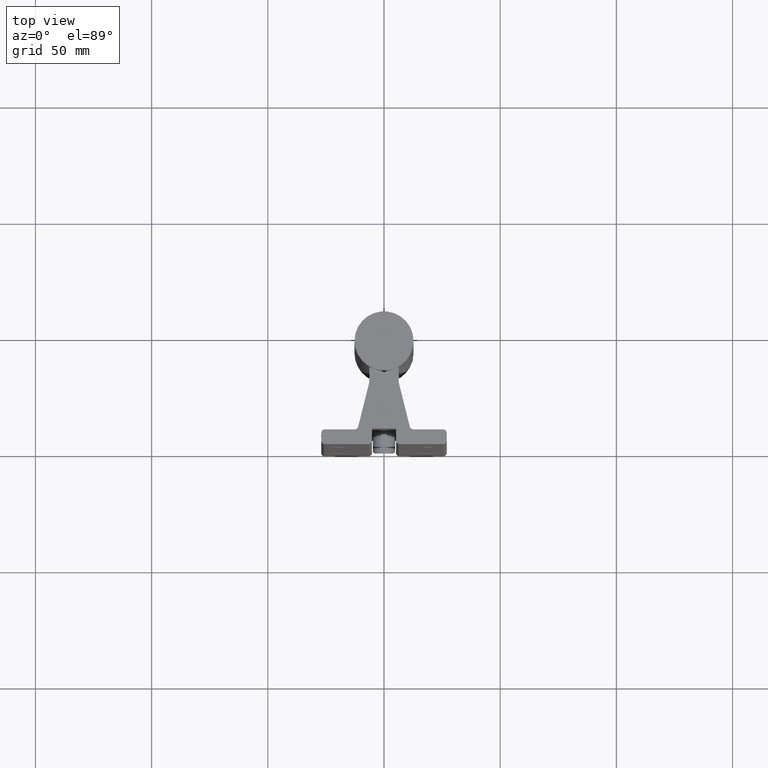
[diagram: clean part render]
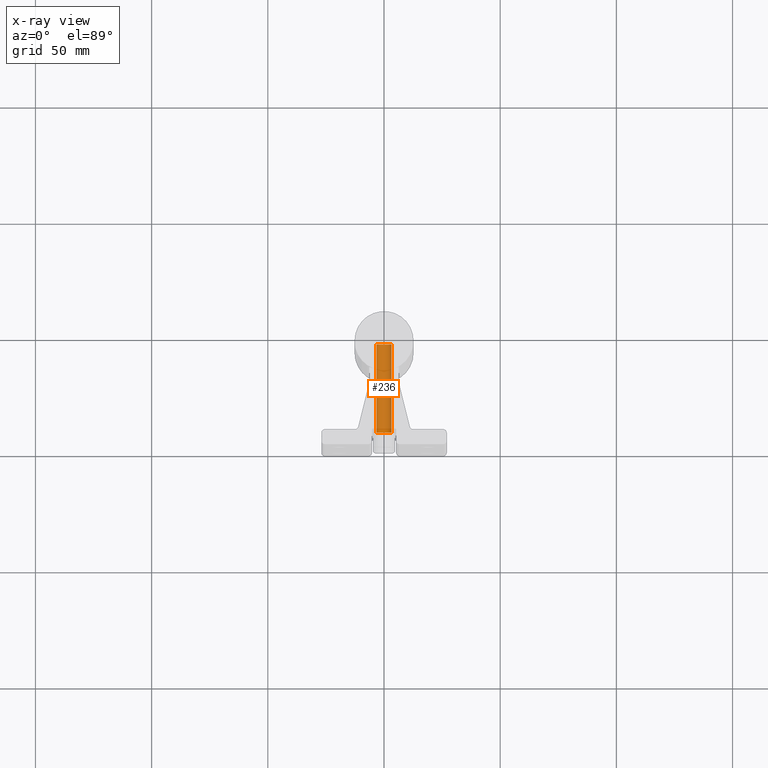
[diagram: x-ray — body ghosted, one internal face saturated and labeled with its STEP entity id]
A machine part, top view, then the same camera in x-ray: the body is ghosted and one INTERNAL B-rep face — a face not visible from any outside direction — is saturated and labeled: STEP entity #236.
In plain terms, the highlighted cylindrical surface (edge-blend (fillet) strip) has radius 3.175 mm, axis along (0, 1, 0).
Its self-contained STEP definition (entity closure, byte-faithful):
#99 = EDGE_CURVE ( 'NONE', #622, #2506, #1573, .T. ) ;
#131 = DIRECTION ( 'NONE',  ( -0.000000000000000000, 1.000000000000000000, -0.000000000000000000 ) ) ;
#236 = ADVANCED_FACE ( 'NONE', ( #1972 ), #3949, .T. ) ;
#283 = ORIENTED_EDGE ( 'NONE', *, *, #3414, .T. ) ;
#305 = CARTESIAN_POINT ( 'NONE',  ( 0.000000000000000000, 0.2500000000000000555, -3.000000000000000444 ) ) ;
#332 = CARTESIAN_POINT ( 'NONE',  ( -0.1250000000000000000, 0.2500000000000000555, -3.000000000000000444 ) ) ;
#344 = VECTOR ( 'NONE', #1716, 39.37007874015748143 ) ;
#411 = DIRECTION ( 'NONE',  ( -1.000000000000000000, 0.000000000000000000, 0.000000000000000000 ) ) ;
#622 = VERTEX_POINT ( 'NONE', #3880 ) ;
#706 = ORIENTED_EDGE ( 'NONE', *, *, #99, .T. ) ;
#1124 = LINE ( 'NONE', #3588, #344 ) ;
#1279 = EDGE_CURVE ( 'NONE', #2482, #622, #2315, .T. ) ;
#1413 = AXIS2_PLACEMENT_3D ( 'NONE', #3882, #3252, #3212 ) ;
#1480 = DIRECTION ( 'NONE',  ( 0.000000000000000000, 1.000000000000000000, 0.000000000000000000 ) ) ;
#1553 = DIRECTION ( 'NONE',  ( 0.000000000000000000, 1.000000000000000000, 0.000000000000000000 ) ) ;
#1573 = LINE ( 'NONE', #332, #1993 ) ;
#1592 = AXIS2_PLACEMENT_3D ( 'NONE', #1977, #131, #411 ) ;
#1716 = DIRECTION ( 'NONE',  ( 0.000000000000000000, 1.000000000000000000, 0.000000000000000000 ) ) ;
#1738 = EDGE_LOOP ( 'NONE', ( #1850, #706, #283, #3288 ) ) ;
#1770 = AXIS2_PLACEMENT_3D ( 'NONE', #305, #1480, #1834 ) ;
#1834 = DIRECTION ( 'NONE',  ( 1.000000000000000000, 0.000000000000000000, 0.000000000000000000 ) ) ;
#1850 = ORIENTED_EDGE ( 'NONE', *, *, #1279, .T. ) ;
#1919 = EDGE_CURVE ( 'NONE', #2482, #2617, #1124, .T. ) ;
#1972 = FACE_OUTER_BOUND ( 'NONE', #1738, .T. ) ;
#1977 = CARTESIAN_POINT ( 'NONE',  ( 0.000000000000000000, 0.2500000000000000555, -3.000000000000000444 ) ) ;
#1993 = VECTOR ( 'NONE', #1553, 39.37007874015748143 ) ;
#2315 = CIRCLE ( 'NONE', #1592, 0.1250000000000000000 ) ;
#2410 = CARTESIAN_POINT ( 'NONE',  ( 0.1250000000000000000, 0.2500000000000000555, -3.000000000000000444 ) ) ;
#2467 = CARTESIAN_POINT ( 'NONE',  ( -0.1250000000000000000, 1.740625000000000311, -3.000000000000000444 ) ) ;
#2482 = VERTEX_POINT ( 'NONE', #2410 ) ;
#2506 = VERTEX_POINT ( 'NONE', #2467 ) ;
#2617 = VERTEX_POINT ( 'NONE', #3439 ) ;
#3212 = DIRECTION ( 'NONE',  ( 1.000000000000000000, 0.000000000000000000, 0.000000000000000000 ) ) ;
#3252 = DIRECTION ( 'NONE',  ( -0.000000000000000000, -1.000000000000000000, -0.000000000000000000 ) ) ;
#3288 = ORIENTED_EDGE ( 'NONE', *, *, #1919, .F. ) ;
#3414 = EDGE_CURVE ( 'NONE', #2506, #2617, #3499, .T. ) ;
#3439 = CARTESIAN_POINT ( 'NONE',  ( 0.1250000000000000000, 1.740625000000000311, -3.000000000000000444 ) ) ;
#3499 = CIRCLE ( 'NONE', #1413, 0.1250000000000000000 ) ;
#3588 = CARTESIAN_POINT ( 'NONE',  ( 0.1250000000000000000, 0.2500000000000000555, -3.000000000000000444 ) ) ;
#3880 = CARTESIAN_POINT ( 'NONE',  ( -0.1250000000000000000, 0.2500000000000000555, -3.000000000000000444 ) ) ;
#3882 = CARTESIAN_POINT ( 'NONE',  ( 0.000000000000000000, 1.740625000000000311, -3.000000000000000444 ) ) ;
#3949 = CYLINDRICAL_SURFACE ( 'NONE', #1770, 0.1250000000000000000 ) ;